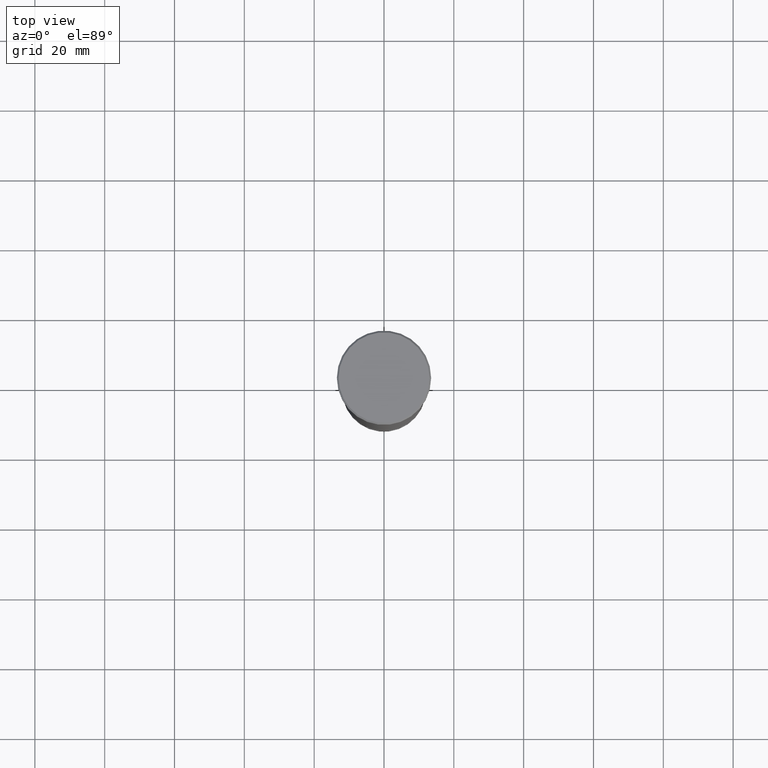
[diagram: clean part render]
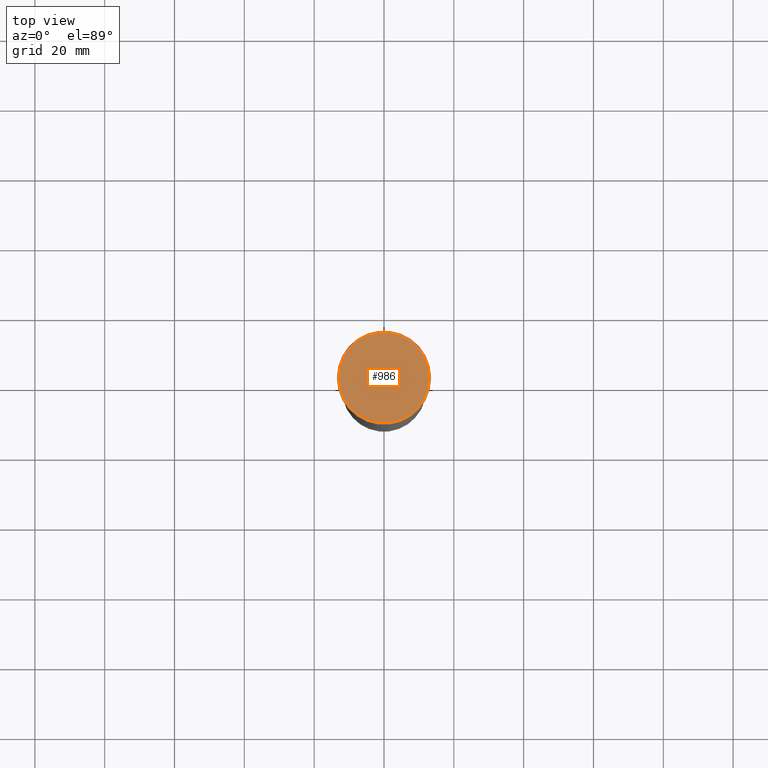
[diagram: same view with one face highlighted and labeled with its STEP entity id]
A machine part, top view. The second image highlights one B-rep face of the part: STEP entity #986.
In plain terms, the highlighted planar face has unit normal (0, -0, 1).
Its self-contained STEP definition (entity closure, byte-faithful):
#160 = CARTESIAN_POINT ( 'NONE',  ( 0.000000000000000000, 0.000000000000000000, 0.000000000000000000 ) ) ;
#196 = EDGE_LOOP ( 'NONE', ( #539, #714 ) ) ;
#288 = DIRECTION ( 'NONE',  ( 1.000000000000000000, 0.000000000000000000, 0.000000000000000000 ) ) ;
#331 = AXIS2_PLACEMENT_3D ( 'NONE', #477, #1019, #1000 ) ;
#365 = CARTESIAN_POINT ( 'NONE',  ( -12.99999999999999289, 0.000000000000000000, 0.000000000000000000 ) ) ;
#477 = CARTESIAN_POINT ( 'NONE',  ( 0.000000000000000000, 0.000000000000000000, 0.000000000000000000 ) ) ;
#502 = VERTEX_POINT ( 'NONE', #365 ) ;
#517 = PLANE ( 'NONE',  #669 ) ;
#539 = ORIENTED_EDGE ( 'NONE', *, *, #588, .T. ) ;
#588 = EDGE_CURVE ( 'NONE', #502, #599, #959, .T. ) ;
#599 = VERTEX_POINT ( 'NONE', #679 ) ;
#668 = EDGE_CURVE ( 'NONE', #599, #502, #830, .T. ) ;
#669 = AXIS2_PLACEMENT_3D ( 'NONE', #160, #966, #971 ) ;
#671 = DIRECTION ( 'NONE',  ( -0.000000000000000000, -0.000000000000000000, 1.000000000000000000 ) ) ;
#679 = CARTESIAN_POINT ( 'NONE',  ( 12.99999999999999289, 1.622657008870242488E-15, 0.000000000000000000 ) ) ;
#714 = ORIENTED_EDGE ( 'NONE', *, *, #668, .T. ) ;
#828 = CARTESIAN_POINT ( 'NONE',  ( 0.000000000000000000, 0.000000000000000000, 0.000000000000000000 ) ) ;
#830 = CIRCLE ( 'NONE', #331, 12.99999999999999289 ) ;
#874 = FACE_OUTER_BOUND ( 'NONE', #196, .T. ) ;
#941 = AXIS2_PLACEMENT_3D ( 'NONE', #828, #671, #288 ) ;
#959 = CIRCLE ( 'NONE', #941, 12.99999999999999289 ) ;
#966 = DIRECTION ( 'NONE',  ( 0.000000000000000000, -0.000000000000000000, 1.000000000000000000 ) ) ;
#971 = DIRECTION ( 'NONE',  ( 1.000000000000000000, 0.000000000000000000, 0.000000000000000000 ) ) ;
#986 = ADVANCED_FACE ( 'NONE', ( #874 ), #517, .T. ) ;
#1000 = DIRECTION ( 'NONE',  ( 1.000000000000000000, 0.000000000000000000, 0.000000000000000000 ) ) ;
#1019 = DIRECTION ( 'NONE',  ( -0.000000000000000000, -0.000000000000000000, 1.000000000000000000 ) ) ;